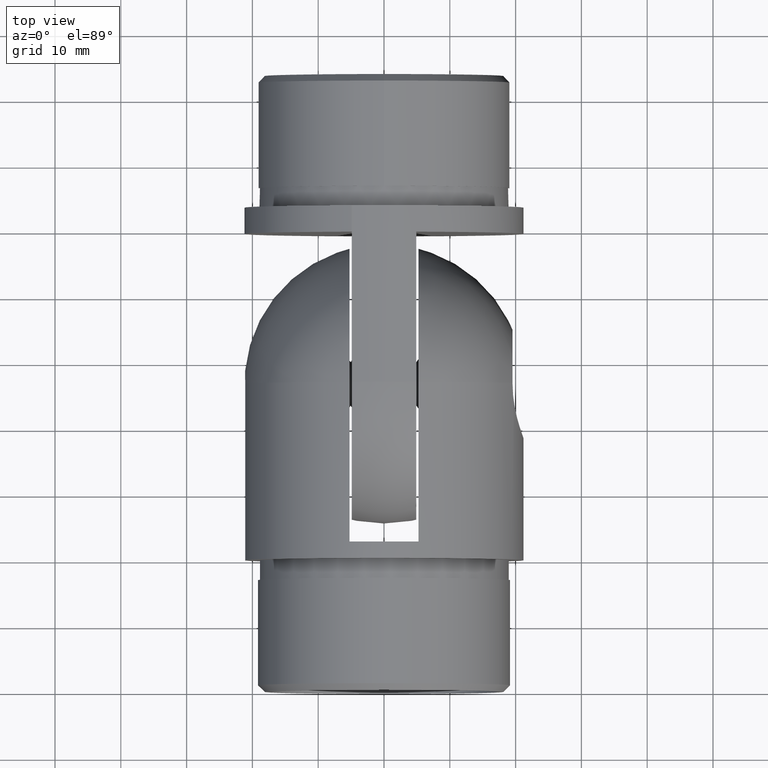
[diagram: clean part render]
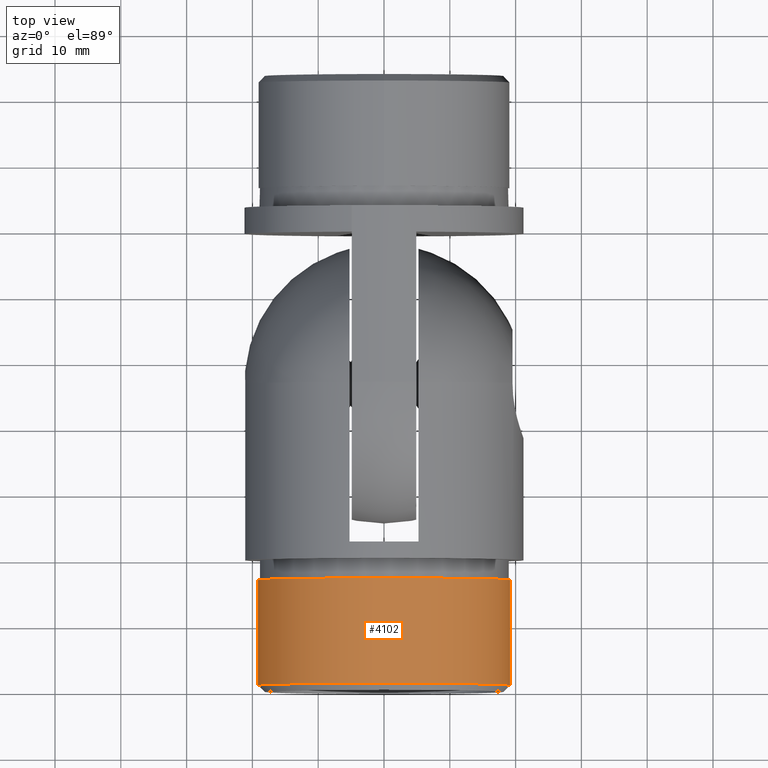
[diagram: same view with one face highlighted and labeled with its STEP entity id]
A machine part, top view. The second image highlights one B-rep face of the part: STEP entity #4102.
In plain terms, the highlighted cylindrical surface (bore or boss wall) has radius 19.15 mm, axis along (-0, 1, 0).
Its self-contained STEP definition (entity closure, byte-faithful):
#310 = AXIS2_PLACEMENT_3D ( 'NONE', #11881, #3242, #1820 ) ;
#1820 = DIRECTION ( 'NONE',  ( 1.000000000000000000, 0.0000000000000000000, 0.0000000000000000000 ) ) ;
#2532 = EDGE_CURVE ( 'NONE', #7324, #7324, #17723, .T. ) ;
#2916 = DIRECTION ( 'NONE',  ( 1.000000000000000000, 6.793956172232926500E-017, 0.0000000000000000000 ) ) ;
#3242 = DIRECTION ( 'NONE',  ( -6.794605754846611700E-017, 1.000000000000000000, 0.0000000000000000000 ) ) ;
#3746 = AXIS2_PLACEMENT_3D ( 'NONE', #10083, #15977, #2916 ) ;
#4082 = ORIENTED_EDGE ( 'NONE', *, *, #2532, .T. ) ;
#4102 = ADVANCED_FACE ( 'NONE', ( #11603, #18609 ), #16122, .T. ) ;
#5202 = DIRECTION ( 'NONE',  ( -6.794605754846613000E-017, 1.000000000000000000, -0.0000000000000000000 ) ) ;
#7324 = VERTEX_POINT ( 'NONE', #12436 ) ;
#8218 = VERTEX_POINT ( 'NONE', #15644 ) ;
#10083 = CARTESIAN_POINT ( 'NONE',  ( 2.038381726453983900E-016, -3.000000000000000000, 0.0000000000000000000 ) ) ;
#10875 = ORIENTED_EDGE ( 'NONE', *, *, #16813, .T. ) ;
#11603 = FACE_OUTER_BOUND ( 'NONE', #17361, .T. ) ;
#11881 = CARTESIAN_POINT ( 'NONE',  ( 1.290975093420855900E-015, -18.99999999999999300, 0.0000000000000000000 ) ) ;
#12436 = CARTESIAN_POINT ( 'NONE',  ( 19.14999999999999900, -2.999999999999998700, 0.0000000000000000000 ) ) ;
#13833 = AXIS2_PLACEMENT_3D ( 'NONE', #18012, #5202, #16749 ) ;
#14318 = CIRCLE ( 'NONE', #310, 19.14999999999999900 ) ;
#15644 = CARTESIAN_POINT ( 'NONE',  ( 19.14999999999999900, -18.99999999999999300, 0.0000000000000000000 ) ) ;
#15977 = DIRECTION ( 'NONE',  ( 6.794605754846613000E-017, -1.000000000000000000, 0.0000000000000000000 ) ) ;
#16122 = CYLINDRICAL_SURFACE ( 'NONE', #13833, 19.14999999999999900 ) ;
#16749 = DIRECTION ( 'NONE',  ( -1.000000000000000000, 0.0000000000000000000, 0.0000000000000000000 ) ) ;
#16813 = EDGE_CURVE ( 'NONE', #8218, #8218, #14318, .T. ) ;
#16931 = EDGE_LOOP ( 'NONE', ( #4082 ) ) ;
#17361 = EDGE_LOOP ( 'NONE', ( #10875 ) ) ;
#17723 = CIRCLE ( 'NONE', #3746, 19.14999999999999900 ) ;
#18012 = CARTESIAN_POINT ( 'NONE',  ( 1.358921150969322700E-015, -20.00000000000000000, 0.0000000000000000000 ) ) ;
#18609 = FACE_OUTER_BOUND ( 'NONE', #16931, .T. ) ;